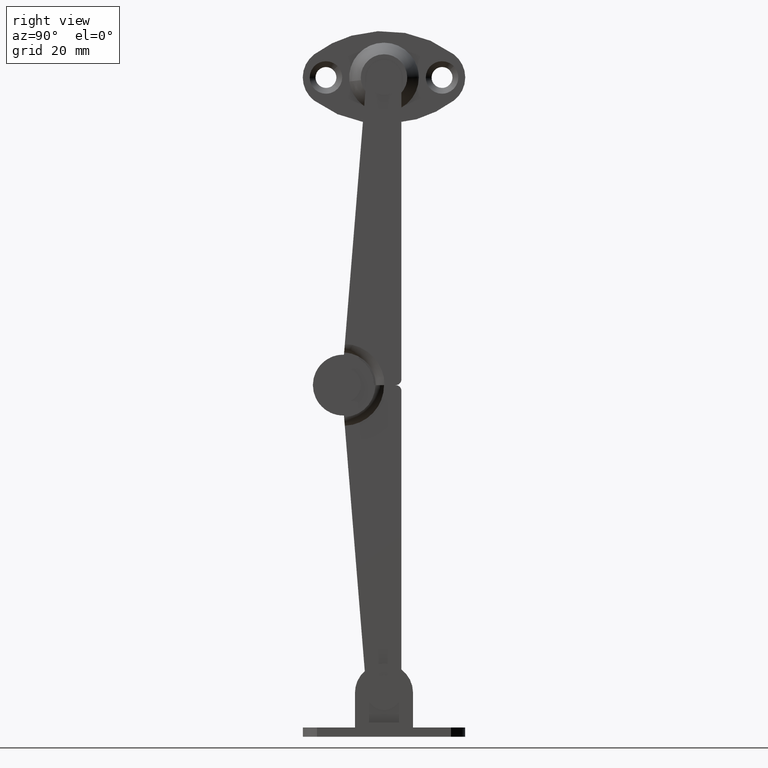
[diagram: clean part render]
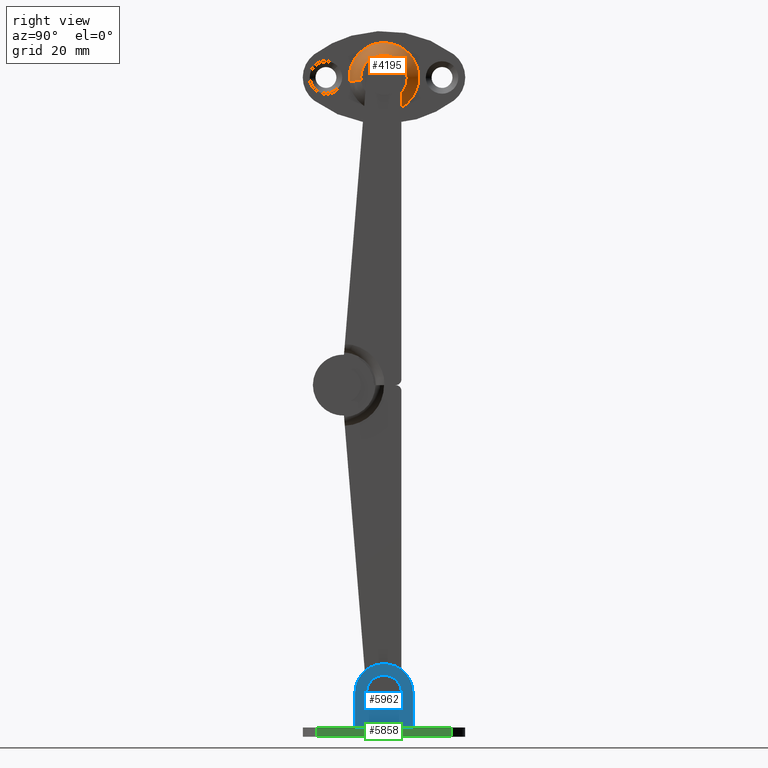
[diagram: same view with three faces highlighted in distinct colors, each labeled with its STEP entity id]
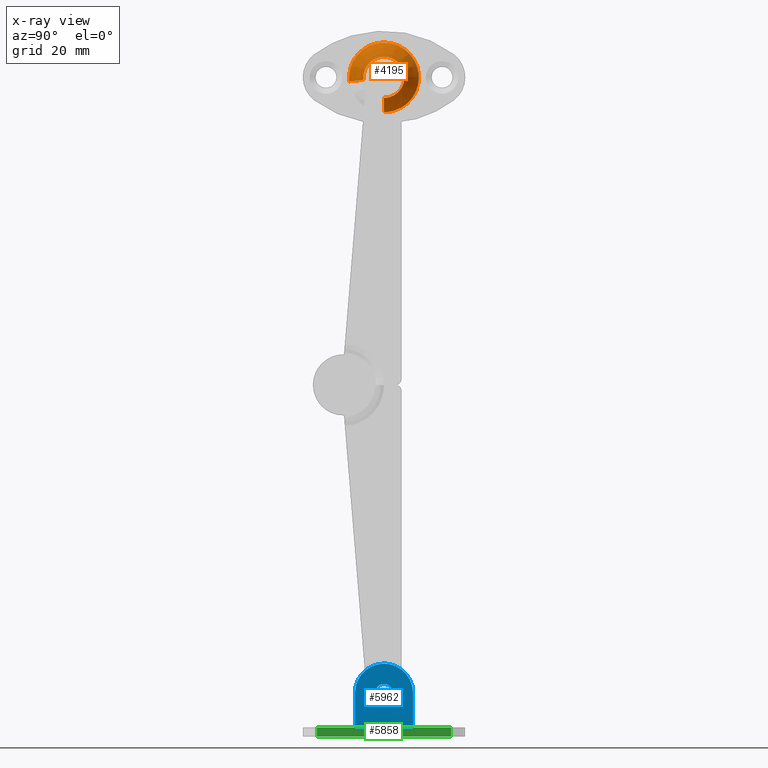
[diagram: x-ray of the same camera — body ghosted, the three highlighted faces saturated]
A machine part, right view with three faces highlighted in distinct colors.
The next image is the same camera in x-ray (body ghosted, the three faces saturated) — at least one of them is partly hidden behind the body in this view.
Their STEP definitions:

[orange] entity #4195 — the highlighted face is a freeform B-spline surface patch.
#3830=CARTESIAN_POINT('',(4.802926784703647,2.075273959813284,55.856354558324917));
#3831=VERTEX_POINT('',#3830);
#3840=CARTESIAN_POINT('',(4.802926919428700,0.0,56.530652043025498));
#3841=VERTEX_POINT('',#3840);
#3842=CARTESIAN_POINT('',(4.802926919428700,0.0,56.530652043025498));
#3843=CARTESIAN_POINT('',(4.802926919458887,0.346641880924726,56.530803143706009));
#3844=CARTESIAN_POINT('',(4.802926897489313,1.086008266951414,56.420845604681197));
#3845=CARTESIAN_POINT('',(4.802926830881680,1.757582828852959,56.087475135537723));
#3846=CARTESIAN_POINT('',(4.802926784703647,2.075273959813284,55.856354558324917));
#3847=B_SPLINE_CURVE_WITH_KNOTS('',3,(#3842,#3843,#3844,#3845,#3846),.UNSPECIFIED.,.F.,.U.,(4,1,4),(0.000000029116642,1.039895019393302,2.218419138487120),.UNSPECIFIED.);
#3848=EDGE_CURVE('',#3841,#3831,#3847,.T.);
#3850=CARTESIAN_POINT('',(4.802926919063910,-3.507052666792230,52.592319249019418));
#3851=VERTEX_POINT('',#3850);
#3852=CARTESIAN_POINT('',(4.802926919063910,-3.507052666792230,52.592319249019418));
#3853=CARTESIAN_POINT('',(4.802926919099738,-3.533931002336477,52.823354360109583));
#3854=CARTESIAN_POINT('',(4.802926919176311,-3.542611896988268,53.337508124668801));
#3855=CARTESIAN_POINT('',(4.802926919286023,-3.377863363564184,54.148598697437400));
#3856=CARTESIAN_POINT('',(4.802926919368974,-3.037063697438995,54.852509975145090));
#3857=CARTESIAN_POINT('',(4.802926919425157,-2.597357273274747,55.416997584856418));
#3858=CARTESIAN_POINT('',(4.802926919464428,-2.055870204453214,55.909447638637680));
#3859=CARTESIAN_POINT('',(4.802926919481742,-1.193806471794109,56.388674265665323));
#3860=CARTESIAN_POINT('',(4.802926919455710,-0.434225689672828,56.531018841913621));
#3861=CARTESIAN_POINT('',(4.802926919428700,0.0,56.530652043025498));
#3862=B_SPLINE_CURVE_WITH_KNOTS('',3,(#3852,#3853,#3854,#3855,#3856,#3857,#3858,#3859,#3860,#3861),.UNSPECIFIED.,.F.,.U.,(4,1,1,1,1,1,1,4),(0.000000187481594,0.697786622931543,1.535165523908785,2.465585348167150,3.023760059183909,3.675067260350955,4.652020952956987,5.954578953526747),.UNSPECIFIED.);
#3863=EDGE_CURVE('',#3851,#3841,#3862,.T.);
#3865=CARTESIAN_POINT('',(4.802926919425620,0.0,49.469317956970137));
#3866=VERTEX_POINT('',#3865);
#3879=CARTESIAN_POINT('',(4.802926786400409,2.970383878303506,51.091470221073763));
#3880=VERTEX_POINT('',#3879);
#3881=CARTESIAN_POINT('',(4.802926786400409,2.970383878303506,51.091470221073763));
#3882=CARTESIAN_POINT('',(4.802926815589133,2.742072750535738,50.735538029155187));
#3883=CARTESIAN_POINT('',(4.802926858123930,2.257450066477081,50.216859970445057));
#3884=CARTESIAN_POINT('',(4.802926894524007,1.487781396492391,49.772986193751521));
#3885=CARTESIAN_POINT('',(4.802926914499002,0.772068719275805,49.529401702553002));
#3886=CARTESIAN_POINT('',(4.802926919431528,0.294140995236189,49.469249044845242));
#3887=CARTESIAN_POINT('',(4.802926919425620,0.0,49.469317956970137));
#3888=B_SPLINE_CURVE_WITH_KNOTS('',3,(#3881,#3882,#3883,#3884,#3885,#3886,#3887),.UNSPECIFIED.,.F.,.U.,(4,1,1,1,4),(0.000000072352199,1.268471513321066,2.095725387282473,2.647236271876630,3.529648338384538),.UNSPECIFIED.);
#3889=EDGE_CURVE('',#3880,#3866,#3888,.T.);
#3932=CARTESIAN_POINT('',(4.802926784703647,2.075273959813284,55.856354558324917));
#3933=CARTESIAN_POINT('',(4.802926830544008,2.435876799249079,55.594908948653170));
#3934=CARTESIAN_POINT('',(4.802926885252627,2.900439486774185,55.098460809522713));
#3935=CARTESIAN_POINT('',(4.802926922954361,3.305109983249463,54.300520665603571));
#3936=CARTESIAN_POINT('',(4.802926932657234,3.490737442076390,53.655743218575537));
#3937=CARTESIAN_POINT('',(4.802926923420543,3.551749595395281,52.987549561893168));
#3938=CARTESIAN_POINT('',(4.802926886327881,3.464298981706514,52.097136645550108));
#3939=CARTESIAN_POINT('',(4.802926832007331,3.211472414292709,51.465975316648091));
#3940=CARTESIAN_POINT('',(4.802926786400409,2.970383878303506,51.091470221073763));
#3941=B_SPLINE_CURVE_WITH_KNOTS('',3,(#3932,#3933,#3934,#3935,#3936,#3937,#3938,#3939,#3940),.UNSPECIFIED.,.F.,.U.,(4,1,1,1,1,1,4),(0.000000045126045,1.336011556467807,2.004032855820456,2.672023067809881,3.340013279799129,4.008034579151418,5.344046090493042),.UNSPECIFIED.);
#3942=EDGE_CURVE('',#3831,#3880,#3941,.T.);
#4087=CARTESIAN_POINT('',(0.786391555790847,-6.003540337890441,52.302123440542140));
#4088=CARTESIAN_POINT('',(3.419877845075099,-5.511108577061162,52.359364531164950));
#4089=CARTESIAN_POINT('',(4.938833310895245,-3.318208071344664,52.614270949798737));
#4090=CARTESIAN_POINT('',(0.786391555790847,-6.043964538682078,52.649883417847882));
#4091=CARTESIAN_POINT('',(3.419877845075100,-5.548217040928321,52.678599996543980));
#4092=CARTESIAN_POINT('',(4.938833310895244,-3.340550872724358,52.806480862390394));
#4093=CARTESIAN_POINT('',(0.786391555790847,-6.043964538682079,52.999984999999889));
#4094=CARTESIAN_POINT('',(3.419877845075100,-5.548217040928321,52.999984999999903));
#4095=CARTESIAN_POINT('',(4.938833310895245,-3.340550872724358,52.999984999999889));
#4096=CARTESIAN_POINT('',(0.786391555790847,-6.043964538682081,59.043949538681993));
#4097=CARTESIAN_POINT('',(3.419877845075099,-5.548217040928323,58.548202040928217));
#4098=CARTESIAN_POINT('',(4.938833310895244,-3.340550872724359,56.340535872724246));
#4099=CARTESIAN_POINT('',(0.786391555790847,0.0,59.043949538681971));
#4100=CARTESIAN_POINT('',(3.419877845075100,0.0,58.548202040928210));
#4101=CARTESIAN_POINT('',(4.938833310895245,0.0,56.340535872724239));
#4102=CARTESIAN_POINT('',(0.786391555790847,6.043964538682081,59.043949538681993));
#4103=CARTESIAN_POINT('',(3.419877845075099,5.548217040928323,58.548202040928217));
#4104=CARTESIAN_POINT('',(4.938833310895244,3.340550872724359,56.340535872724246));
#4105=CARTESIAN_POINT('',(0.786391555790847,6.043964538682079,52.999984999999889));
#4106=CARTESIAN_POINT('',(3.419877845075100,5.548217040928321,52.999984999999903));
#4107=CARTESIAN_POINT('',(4.938833310895245,3.340550872724358,52.999984999999889));
#4108=CARTESIAN_POINT('',(0.786391555790847,6.043964538682081,46.956020461317813));
#4109=CARTESIAN_POINT('',(3.419877845075099,5.548217040928323,47.451767959071582));
#4110=CARTESIAN_POINT('',(4.938833310895244,3.340550872724359,49.659434127275532));
#4111=CARTESIAN_POINT('',(0.786391555790847,0.0,46.956020461317813));
#4112=CARTESIAN_POINT('',(3.419877845075100,0.0,47.451767959071567));
#4113=CARTESIAN_POINT('',(4.938833310895245,0.0,49.659434127275532));
#4121=(BOUNDED_SURFACE()B_SPLINE_SURFACE(2,2,((#4087,#4090,#4093,#4096,#4099,#4102,#4105,#4108,#4111),(#4088,#4091,#4094,#4097,#4100,#4103,#4106,#4109,#4112),(#4089,#4092,#4095,#4098,#4101,#4104,#4107,#4110,#4113)),.UNSPECIFIED.,.F.,.F.,.U.)B_SPLINE_SURFACE_WITH_KNOTS((3,3),(3,2,2,2,3),(0.0,5.147522354738825),(0.0,0.801117299249606,10.815085628946260,20.829053958642920,30.843022288339569),.UNSPECIFIED.)GEOMETRIC_REPRESENTATION_ITEM()RATIONAL_B_SPLINE_SURFACE(((0.897205241634398,0.915660072135458,0.937630107573233,0.663004607309705,0.937630107573233,0.663004607309705,0.937630107573233,0.663004607309705,0.937630107573233),(0.800057206500456,0.816513775691047,0.836104928710887,0.591215464874963,0.836104928710887,0.591215464874963,0.836104928710887,0.591215464874963,0.836104928710887),(0.834685945988363,0.851854802053861,0.872293915605373,0.616804942912325,0.872293915605373,0.616804942912325,0.872293915605373,0.616804942912325,0.872293915605373)))REPRESENTATION_ITEM('')SURFACE());
#4122=ORIENTED_EDGE('',*,*,#3863,.T.);
#4123=ORIENTED_EDGE('',*,*,#3848,.T.);
#4124=ORIENTED_EDGE('',*,*,#3942,.T.);
#4125=ORIENTED_EDGE('',*,*,#3889,.T.);
#4126=CARTESIAN_POINT('',(1.000000000056040,0.0,46.999954362769657));
#4127=VERTEX_POINT('',#4126);
#4128=CARTESIAN_POINT('',(1.000000000056040,0.0,46.999954362769657));
#4129=CARTESIAN_POINT('',(1.400250300647139,0.0,47.089271986640789));
#4130=CARTESIAN_POINT('',(2.322084262824262,0.0,47.388832921404642));
#4131=CARTESIAN_POINT('',(3.659626383585913,0.0,48.185004757385727));
#4132=CARTESIAN_POINT('',(4.457952076277928,0.0,49.004341564744202));
#4133=CARTESIAN_POINT('',(4.802926919425620,0.0,49.469317956970137));
#4134=B_SPLINE_CURVE_WITH_KNOTS('',3,(#4128,#4129,#4130,#4131,#4132,#4133),.UNSPECIFIED.,.F.,.U.,(4,1,1,4),(0.000000028116848,1.230298611486071,2.894816991374005,4.631707894551068),.UNSPECIFIED.);
#4135=EDGE_CURVE('',#4127,#3866,#4134,.T.);
#4136=ORIENTED_EDGE('',*,*,#4135,.F.);
#4137=CARTESIAN_POINT('',(0.999999999999989,6.000030637242576,52.999983593430841));
#4138=VERTEX_POINT('',#4137);
#4139=CARTESIAN_POINT('',(0.999999999999989,6.000030637242576,52.999983593430841));
#4140=CARTESIAN_POINT('',(1.000000000002626,6.000218956508119,52.435457521644118));
#4141=CARTESIAN_POINT('',(1.000000000007599,5.867418166409125,51.502914493320588));
#4142=CARTESIAN_POINT('',(1.000000000016259,5.344706702232969,50.172277186653602));
#4143=CARTESIAN_POINT('',(1.000000000024268,4.657807865401903,49.144221286534858));
#4144=CARTESIAN_POINT('',(1.000000000033551,3.646224950248897,48.169164528913420));
#4145=CARTESIAN_POINT('',(1.000000000041154,2.626564475148537,47.557974429575303));
#4146=CARTESIAN_POINT('',(1.000000000049222,1.349807995430357,47.110081149183983));
#4147=CARTESIAN_POINT('',(1.000000000053529,0.539983985434766,46.999759975576161));
#4148=CARTESIAN_POINT('',(1.000000000056040,0.0,46.999954362769657));
#4149=B_SPLINE_CURVE_WITH_KNOTS('',3,(#4139,#4140,#4141,#4142,#4143,#4144,#4145,#4146,#4147,#4148),.UNSPECIFIED.,.F.,.U.,(4,1,1,1,1,1,1,4),(0.000000141864628,1.693528300592148,2.798017475675454,4.270654331079030,5.375129007876431,6.995030141722231,7.804999113232464,9.424884429652192),.UNSPECIFIED.);
#4150=EDGE_CURVE('',#4138,#4127,#4149,.T.);
#4151=ORIENTED_EDGE('',*,*,#4150,.F.);
#4152=CARTESIAN_POINT('',(0.999999999999989,0.0,59.000015637242633));
#4153=VERTEX_POINT('',#4152);
#4154=CARTESIAN_POINT('',(0.999999999999989,0.0,59.000015637242633));
#4155=CARTESIAN_POINT('',(0.999999999997121,0.613630093048112,59.000289951485620));
#4156=CARTESIAN_POINT('',(0.999999999993346,1.570647770954839,58.851879812532403));
#4157=CARTESIAN_POINT('',(0.999999999990046,2.776869136387120,58.352078105553012));
#4158=CARTESIAN_POINT('',(0.999999999988258,3.817600771823174,57.693241963408433));
#4159=CARTESIAN_POINT('',(0.999999999988261,4.710795630235903,56.800088893855971));
#4160=CARTESIAN_POINT('',(0.999999999989947,5.311338364324109,55.838358325744352));
#4161=CARTESIAN_POINT('',(0.999999999992264,5.694477733969370,54.959560529417722));
#4162=CARTESIAN_POINT('',(0.999999999995344,5.938738045614501,54.055357612730063));
#4163=CARTESIAN_POINT('',(0.999999999998385,6.000054330042615,53.343589337934901));
#4164=CARTESIAN_POINT('',(0.999999999999989,6.000030637242576,52.999983593430841));
#4165=B_SPLINE_CURVE_WITH_KNOTS('',3,(#4154,#4155,#4156,#4157,#4158,#4159,#4160,#4161,#4162,#4163,#4164),.UNSPECIFIED.,.F.,.U.,(4,1,1,1,1,1,1,1,4),(0.000000141371956,1.840787123513768,2.871656805015237,3.902521993081475,5.522364744683175,6.626869202910546,7.289561284269608,8.394063268506988,9.424886015200414),.UNSPECIFIED.);
#4166=EDGE_CURVE('',#4153,#4138,#4165,.T.);
#4167=ORIENTED_EDGE('',*,*,#4166,.F.);
#4168=CARTESIAN_POINT('',(1.000000000047840,-5.959900265029916,52.307196086535107));
#4169=VERTEX_POINT('',#4168);
#4170=CARTESIAN_POINT('',(1.000000000047840,-5.959900265029916,52.307196086535107));
#4171=CARTESIAN_POINT('',(1.000000000042770,-6.008645557908049,52.725996566244568));
#4172=CARTESIAN_POINT('',(1.000000000032946,-6.017295260700281,53.573906455304083));
#4173=CARTESIAN_POINT('',(1.000000000018721,-5.743012152844977,54.924294617908529));
#4174=CARTESIAN_POINT('',(1.000000000006943,-5.145896573958622,56.200296316501060));
#4175=CARTESIAN_POINT('',(0.999999999997934,-4.177088329300460,57.394907104493477));
#4176=CARTESIAN_POINT('',(0.999999999994040,-3.109393411656551,58.188289306397827));
#4177=CARTESIAN_POINT('',(0.999999999993790,-2.096236277485626,58.642486936333469));
#4178=CARTESIAN_POINT('',(0.999999999995299,-1.133090049743870,58.922899006422512));
#4179=CARTESIAN_POINT('',(0.999999999997782,-0.447985769319129,59.000113586271077));
#4180=CARTESIAN_POINT('',(0.999999999999989,0.0,59.000015637242633));
#4181=B_SPLINE_CURVE_WITH_KNOTS('',3,(#4170,#4171,#4172,#4173,#4174,#4175,#4176,#4177,#4178,#4179,#4180),.UNSPECIFIED.,.F.,.U.,(4,1,1,1,1,1,1,1,4),(0.000000141001072,1.264881694036964,2.529810350529001,4.110975529175665,5.454858449893768,7.115081534613761,8.063769331722714,8.775301596762200,10.119236876710261),.UNSPECIFIED.);
#4182=EDGE_CURVE('',#4169,#4153,#4181,.T.);
#4183=ORIENTED_EDGE('',*,*,#4182,.F.);
#4184=CARTESIAN_POINT('',(1.000000000047840,-5.959900265029916,52.307196086535107));
#4185=CARTESIAN_POINT('',(1.400245614295038,-5.871171253124654,52.317510097343153));
#4186=CARTESIAN_POINT('',(2.322094578818939,-5.573644762818094,52.352095081009217));
#4187=CARTESIAN_POINT('',(3.659623946434175,-4.782762332122182,52.444028595355462));
#4188=CARTESIAN_POINT('',(4.457942179913996,-3.968912059608230,52.538631930422348));
#4189=CARTESIAN_POINT('',(4.802926919063910,-3.507052666792230,52.592319249019418));
#4190=B_SPLINE_CURVE_WITH_KNOTS('',3,(#4184,#4185,#4186,#4187,#4188,#4189),.UNSPECIFIED.,.F.,.U.,(4,1,1,4),(0.000000028118204,1.230298611320371,2.894816990982474,4.631707893924446),.UNSPECIFIED.);
#4191=EDGE_CURVE('',#4169,#3851,#4190,.T.);
#4192=ORIENTED_EDGE('',*,*,#4191,.T.);
#4193=EDGE_LOOP('',(#4122,#4123,#4124,#4125,#4136,#4151,#4167,#4183,#4192));
#4194=FACE_OUTER_BOUND('',#4193,.T.);
#4195=ADVANCED_FACE('',(#4194),#4121,.T.);

[blue] entity #5962 — the highlighted face is a freeform B-spline surface patch.
#4630=CARTESIAN_POINT('',(9.200028000000001,-1.145333999211753,-53.968597509857062));
#4631=VERTEX_POINT('',#4630);
#4632=CARTESIAN_POINT('',(9.200028000000001,-1.705303E-013,-54.499983999999998));
#4633=VERTEX_POINT('',#4632);
#4634=CARTESIAN_POINT('',(9.200028000000001,-1.145333999211753,-53.968597509857062));
#4635=CARTESIAN_POINT('',(9.200028000000014,-0.996545510852823,-54.145070632549590));
#4636=CARTESIAN_POINT('',(9.200027999999980,-0.637892472995516,-54.410173180923543));
#4637=CARTESIAN_POINT('',(9.200028000000016,-0.203658102334124,-54.500203533994657));
#4638=CARTESIAN_POINT('',(9.200028000000001,-1.705303E-013,-54.499983999999998));
#4639=B_SPLINE_CURVE_WITH_KNOTS('',3,(#4634,#4635,#4636,#4637,#4638),.UNSPECIFIED.,.F.,.U.,(4,1,4),(0.000000083460323,0.692330017265351,1.303242752814418),.UNSPECIFIED.);
#4640=EDGE_CURVE('',#4631,#4633,#4639,.T.);
#4642=CARTESIAN_POINT('',(9.200028000000001,1.499999999997139,-52.999981158927291));
#4643=VERTEX_POINT('',#4642);
#4644=CARTESIAN_POINT('',(9.200028000000001,-1.705303E-013,-54.499983999999998));
#4645=CARTESIAN_POINT('',(9.200027999999989,0.220969431409705,-54.500342702786632));
#4646=CARTESIAN_POINT('',(9.200028000000016,0.551996542610590,-54.425407527536727));
#4647=CARTESIAN_POINT('',(9.200028000000007,0.919875441552515,-54.198614741469207));
#4648=CARTESIAN_POINT('',(9.200028000000001,1.169943773688075,-53.960555084491197));
#4649=CARTESIAN_POINT('',(9.200028000000023,1.419897402534117,-53.576510328547187));
#4650=CARTESIAN_POINT('',(9.200027999999973,1.500348602666619,-53.220943059593722));
#4651=CARTESIAN_POINT('',(9.200028000000001,1.499999999997139,-52.999981158927291));
#4652=B_SPLINE_CURVE_WITH_KNOTS('',3,(#4644,#4645,#4646,#4647,#4648,#4649,#4650,#4651),.UNSPECIFIED.,.F.,.U.,(4,1,1,1,1,4),(0.000000283998266,0.662700729031343,0.994076365536611,1.288575942997353,1.693554774462325,2.356255217872299),.UNSPECIFIED.);
#4653=EDGE_CURVE('',#4633,#4643,#4652,.T.);
#4655=CARTESIAN_POINT('',(9.200028000000001,-1.705303E-013,-51.499983999999998));
#4656=VERTEX_POINT('',#4655);
#4657=CARTESIAN_POINT('',(9.200028000000001,1.499999999997139,-52.999981158927291));
#4658=CARTESIAN_POINT('',(9.200028000000001,1.500099241943992,-52.828165002794172));
#4659=CARTESIAN_POINT('',(9.200027999999998,1.442468310206843,-52.496881796271147));
#4660=CARTESIAN_POINT('',(9.200028000000009,1.232707649102784,-52.115798634126861));
#4661=CARTESIAN_POINT('',(9.200028000000005,0.960563212173446,-51.830055214692692));
#4662=CARTESIAN_POINT('',(9.200027999999982,0.576546314849167,-51.580025184770633));
#4663=CARTESIAN_POINT('',(9.200028000000032,0.220947510222338,-51.499693680137121));
#4664=CARTESIAN_POINT('',(9.200028000000001,-1.705303E-013,-51.499983999999998));
#4665=B_SPLINE_CURVE_WITH_KNOTS('',3,(#4657,#4658,#4659,#4660,#4661,#4662,#4663,#4664),.UNSPECIFIED.,.F.,.U.,(4,1,1,1,1,4),(0.000000287884258,0.515426608274804,0.994075016389013,1.288574184433029,1.693552470179103,2.356252015241243),.UNSPECIFIED.);
#4666=EDGE_CURVE('',#4643,#4656,#4665,.T.);
#4668=CARTESIAN_POINT('',(9.200027999962853,-1.032531529773791,-51.911923104581653));
#4669=VERTEX_POINT('',#4668);
#4670=CARTESIAN_POINT('',(9.200028000000001,-1.705303E-013,-51.499983999999998));
#4671=CARTESIAN_POINT('',(9.200027999994447,-0.154214615454925,-51.499930884704618));
#4672=CARTESIAN_POINT('',(9.200027999980804,-0.533825157253816,-51.558991013975458));
#4673=CARTESIAN_POINT('',(9.200027999968723,-0.869237189267641,-51.756450759962597));
#4674=CARTESIAN_POINT('',(9.200027999962853,-1.032531529773791,-51.911923104581653));
#4675=B_SPLINE_CURVE_WITH_KNOTS('',3,(#4670,#4671,#4672,#4673,#4674),.UNSPECIFIED.,.F.,.U.,(4,1,4),(0.000000055590814,0.462664644830046,1.138853985102375),.UNSPECIFIED.);
#4676=EDGE_CURVE('',#4656,#4669,#4675,.T.);
#4753=CARTESIAN_POINT('',(9.200028000000001,-1.499999999997480,-52.999986841072733));
#4754=VERTEX_POINT('',#4753);
#4755=CARTESIAN_POINT('',(9.200028000000001,-1.499999999997480,-52.999986841072733));
#4756=CARTESIAN_POINT('',(9.200028000000003,-1.500032151842032,-53.131613360686579));
#4757=CARTESIAN_POINT('',(9.200028000000001,-1.453537433776584,-53.482614147463238));
#4758=CARTESIAN_POINT('',(9.200027999999989,-1.287320933668049,-53.801274132500183));
#4759=CARTESIAN_POINT('',(9.200028000000001,-1.145333999211753,-53.968597509857062));
#4760=B_SPLINE_CURVE_WITH_KNOTS('',3,(#4755,#4756,#4757,#4758,#4759),.UNSPECIFIED.,.F.,.U.,(4,1,4),(0.000000047972324,0.394889184930442,1.053010571155506),.UNSPECIFIED.);
#4761=EDGE_CURVE('',#4754,#4631,#4760,.T.);
#4783=CARTESIAN_POINT('',(9.200027999962853,-1.032531529773791,-51.911923104581653));
#4784=CARTESIAN_POINT('',(9.200027999966748,-1.152156196647454,-52.025347646116700));
#4785=CARTESIAN_POINT('',(9.200027999977900,-1.399996261883903,-52.353689943509089));
#4786=CARTESIAN_POINT('',(9.200027999991795,-1.500479117943364,-52.758942233083289));
#4787=CARTESIAN_POINT('',(9.200028000000001,-1.499999999997480,-52.999986841072733));
#4788=B_SPLINE_CURVE_WITH_KNOTS('',3,(#4783,#4784,#4785,#4786,#4787),.UNSPECIFIED.,.F.,.U.,(4,1,4),(0.000000077544710,0.494573545595294,1.217402112037074),.UNSPECIFIED.);
#4789=EDGE_CURVE('',#4669,#4754,#4788,.T.);
#5530=CARTESIAN_POINT('',(9.200028000000001,-5.000000000000171,-52.999952999999898));
#5531=VERTEX_POINT('',#5530);
#5537=CARTESIAN_POINT('',(9.200028000000001,-1.043289E-013,-47.999952999999891));
#5538=VERTEX_POINT('',#5537);
#5539=CARTESIAN_POINT('',(9.200028000000001,-1.043289E-013,-47.999952999999891));
#5540=CARTESIAN_POINT('',(9.200027999999989,-0.409062540269316,-47.999876568755163));
#5541=CARTESIAN_POINT('',(9.200028000000033,-1.288535444181318,-48.108383119428410));
#5542=CARTESIAN_POINT('',(9.200027999999985,-2.493966788165660,-48.598963476390239));
#5543=CARTESIAN_POINT('',(9.200028000000039,-3.428685413999387,-49.310361778938478));
#5544=CARTESIAN_POINT('',(9.200027999999984,-4.166193522959667,-50.165311067125657));
#5545=CARTESIAN_POINT('',(9.200028000000092,-4.805463281411459,-51.343571745305013));
#5546=CARTESIAN_POINT('',(9.200027999999938,-5.000557091360424,-52.386283573352742));
#5547=CARTESIAN_POINT('',(9.200028000000001,-5.000000000000171,-52.999952999999898));
#5548=B_SPLINE_CURVE_WITH_KNOTS('',3,(#5539,#5540,#5541,#5542,#5543,#5544,#5545,#5546,#5547),.UNSPECIFIED.,.F.,.U.,(4,1,1,1,1,1,4),(0.000000144674838,1.227191357000726,2.638464900573162,3.865698797481390,4.724688059792364,6.013244874316365,7.854030914386288),.UNSPECIFIED.);
#5549=EDGE_CURVE('',#5538,#5531,#5548,.T.);
#5551=CARTESIAN_POINT('',(9.200028000000001,4.999999999999170,-52.999953000000012));
#5552=VERTEX_POINT('',#5551);
#5553=CARTESIAN_POINT('',(9.200028000000001,4.999999999999170,-52.999953000000012));
#5554=CARTESIAN_POINT('',(9.200028000000021,5.000148228625023,-52.549974963382098));
#5555=CARTESIAN_POINT('',(9.200027999999970,4.880471827713885,-51.670568946504623));
#5556=CARTESIAN_POINT('',(9.200028000000016,4.360029319571145,-50.435217111401727));
#5557=CARTESIAN_POINT('',(9.200027999999989,3.534573915120108,-49.377539715765721));
#5558=CARTESIAN_POINT('',(9.200028000000003,2.589610504291636,-48.676779648857469));
#5559=CARTESIAN_POINT('',(9.200028000000028,1.411001637238183,-48.145668046564737));
#5560=CARTESIAN_POINT('',(9.200027999999955,0.572758386556794,-47.999569960413659));
#5561=CARTESIAN_POINT('',(9.200028000000001,-1.043289E-013,-47.999952999999891));
#5562=B_SPLINE_CURVE_WITH_KNOTS('',3,(#5553,#5554,#5555,#5556,#5557,#5558,#5559,#5560,#5561),.UNSPECIFIED.,.F.,.U.,(4,1,1,1,1,1,4),(0.000000144675079,1.349901091342082,2.638464900571111,3.988331239899691,5.338282439573920,6.135963709603554,7.854030914385984),.UNSPECIFIED.);
#5563=EDGE_CURVE('',#5552,#5538,#5562,.T.);
#5714=CARTESIAN_POINT('',(9.200027999999861,5.0,-58.999946999999999));
#5715=VERTEX_POINT('',#5714);
#5742=CARTESIAN_POINT('',(9.200028000000001,4.999999999999170,-52.999953000000012));
#5743=CARTESIAN_POINT('',(9.200027999999861,5.0,-58.999946999999999));
#5744=QUASI_UNIFORM_CURVE('',1,(#5742,#5743),.UNSPECIFIED.,.F.,.U.);
#5745=EDGE_CURVE('',#5552,#5715,#5744,.T.);
#5759=CARTESIAN_POINT('',(9.200027999999861,-5.0,-58.999946999999999));
#5760=VERTEX_POINT('',#5759);
#5865=CARTESIAN_POINT('',(9.200027999999861,5.0,-58.999946999999999));
#5866=CARTESIAN_POINT('',(9.200027999999861,-5.0,-58.999946999999999));
#5867=QUASI_UNIFORM_CURVE('',1,(#5865,#5866),.UNSPECIFIED.,.F.,.U.);
#5868=EDGE_CURVE('',#5715,#5760,#5867,.T.);
#5934=CARTESIAN_POINT('',(9.200028000000001,-5.000000000000171,-52.999952999999898));
#5935=CARTESIAN_POINT('',(9.200027999999861,-5.0,-58.999946999999999));
#5936=QUASI_UNIFORM_CURVE('',1,(#5934,#5935),.UNSPECIFIED.,.F.,.U.);
#5937=EDGE_CURVE('',#5531,#5760,#5936,.T.);
#5942=CARTESIAN_POINT('',(9.200027999999861,-5.499499980618238,-47.450504599440592));
#5943=CARTESIAN_POINT('',(9.200027999999861,-5.499499980618238,-59.549396088992573));
#5944=CARTESIAN_POINT('',(9.200027999999861,5.499500248838969,-47.450504599440592));
#5945=CARTESIAN_POINT('',(9.200027999999861,5.499500248838969,-59.549396088992573));
#5946=B_SPLINE_SURFACE_WITH_KNOTS('',1,1,((#5942,#5944),(#5943,#5945)),.UNSPECIFIED.,.F.,.F.,.U.,(2,2),(2,2),(0.0,12.098891489551979),(0.0,10.999000229457209),.UNSPECIFIED.);
#5947=ORIENTED_EDGE('',*,*,#5745,.F.);
#5948=ORIENTED_EDGE('',*,*,#5563,.T.);
#5949=ORIENTED_EDGE('',*,*,#5549,.T.);
#5950=ORIENTED_EDGE('',*,*,#5937,.T.);
#5951=ORIENTED_EDGE('',*,*,#5868,.F.);
#5952=EDGE_LOOP('',(#5947,#5948,#5949,#5950,#5951));
#5953=FACE_OUTER_BOUND('',#5952,.T.);
#5954=ORIENTED_EDGE('',*,*,#4653,.F.);
#5955=ORIENTED_EDGE('',*,*,#4640,.F.);
#5956=ORIENTED_EDGE('',*,*,#4761,.F.);
#5957=ORIENTED_EDGE('',*,*,#4789,.F.);
#5958=ORIENTED_EDGE('',*,*,#4676,.F.);
#5959=ORIENTED_EDGE('',*,*,#4666,.F.);
#5960=EDGE_LOOP('',(#5954,#5955,#5956,#5957,#5958,#5959));
#5961=FACE_BOUND('',#5960,.T.);
#5962=ADVANCED_FACE('',(#5953,#5961),#5946,.T.);

[green] entity #5858 — the highlighted face is a freeform B-spline surface patch.
#5660=CARTESIAN_POINT('',(17.800027999999749,11.551465000000039,-58.999946999999999));
#5661=VERTEX_POINT('',#5660);
#5678=CARTESIAN_POINT('',(17.800027999999749,11.551465000000039,-60.599952999999893));
#5679=VERTEX_POINT('',#5678);
#5680=CARTESIAN_POINT('',(17.800027999999749,11.551465000000039,-60.599952999999893));
#5681=CARTESIAN_POINT('',(17.800027999999749,11.551465000000039,-58.999946999999999));
#5682=QUASI_UNIFORM_CURVE('',1,(#5680,#5681),.UNSPECIFIED.,.F.,.U.);
#5683=EDGE_CURVE('',#5679,#5661,#5682,.T.);
#5794=CARTESIAN_POINT('',(17.800027999999848,-11.551465000000000,-58.999946999999999));
#5795=VERTEX_POINT('',#5794);
#5813=CARTESIAN_POINT('',(17.800027999999848,-11.551465000000000,-60.599952999999893));
#5814=VERTEX_POINT('',#5813);
#5831=CARTESIAN_POINT('',(17.800027999999848,-11.551465000000000,-60.599952999999893));
#5832=CARTESIAN_POINT('',(17.800027999999848,-11.551465000000000,-58.999946999999999));
#5833=QUASI_UNIFORM_CURVE('',1,(#5831,#5832),.UNSPECIFIED.,.F.,.U.);
#5834=EDGE_CURVE('',#5814,#5795,#5833,.T.);
#5839=CARTESIAN_POINT('',(17.800027999999799,12.705456525595860,-60.679872998333863));
#5840=CARTESIAN_POINT('',(17.800027999999799,-12.705456938708410,-60.679872998333863));
#5841=CARTESIAN_POINT('',(17.800027999999799,12.705456525595860,-58.920026315017942));
#5842=CARTESIAN_POINT('',(17.800027999999799,-12.705456938708410,-58.920026315017942));
#5843=B_SPLINE_SURFACE_WITH_KNOTS('',1,1,((#5839,#5841),(#5840,#5842)),.UNSPECIFIED.,.F.,.F.,.U.,(2,2),(2,2),(0.0,25.410913464304269),(0.041708490294218,0.958291867333651),.UNSPECIFIED.);
#5844=CARTESIAN_POINT('',(17.800027999999749,11.551465000000039,-58.999946999999999));
#5845=CARTESIAN_POINT('',(17.800027999999848,-11.551465000000000,-58.999946999999999));
#5846=QUASI_UNIFORM_CURVE('',1,(#5844,#5845),.UNSPECIFIED.,.F.,.U.);
#5847=EDGE_CURVE('',#5661,#5795,#5846,.T.);
#5848=ORIENTED_EDGE('',*,*,#5847,.T.);
#5849=ORIENTED_EDGE('',*,*,#5834,.F.);
#5850=CARTESIAN_POINT('',(17.800027999999749,11.551465000000039,-60.599952999999893));
#5851=CARTESIAN_POINT('',(17.800027999999848,-11.551465000000000,-60.599952999999893));
#5852=QUASI_UNIFORM_CURVE('',1,(#5850,#5851),.UNSPECIFIED.,.F.,.U.);
#5853=EDGE_CURVE('',#5679,#5814,#5852,.T.);
#5854=ORIENTED_EDGE('',*,*,#5853,.F.);
#5855=ORIENTED_EDGE('',*,*,#5683,.T.);
#5856=EDGE_LOOP('',(#5848,#5849,#5854,#5855));
#5857=FACE_OUTER_BOUND('',#5856,.T.);
#5858=ADVANCED_FACE('',(#5857),#5843,.F.);